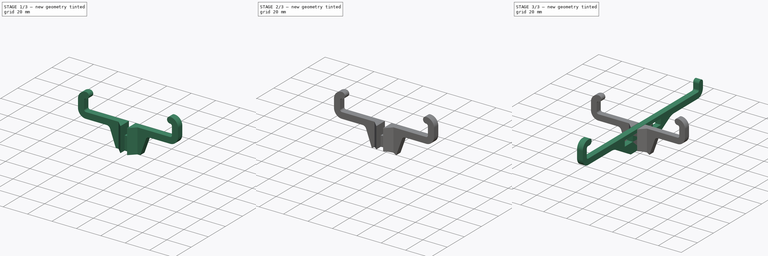
[diagram: build sequence overview — one tinted view per stage of 3, left to right]
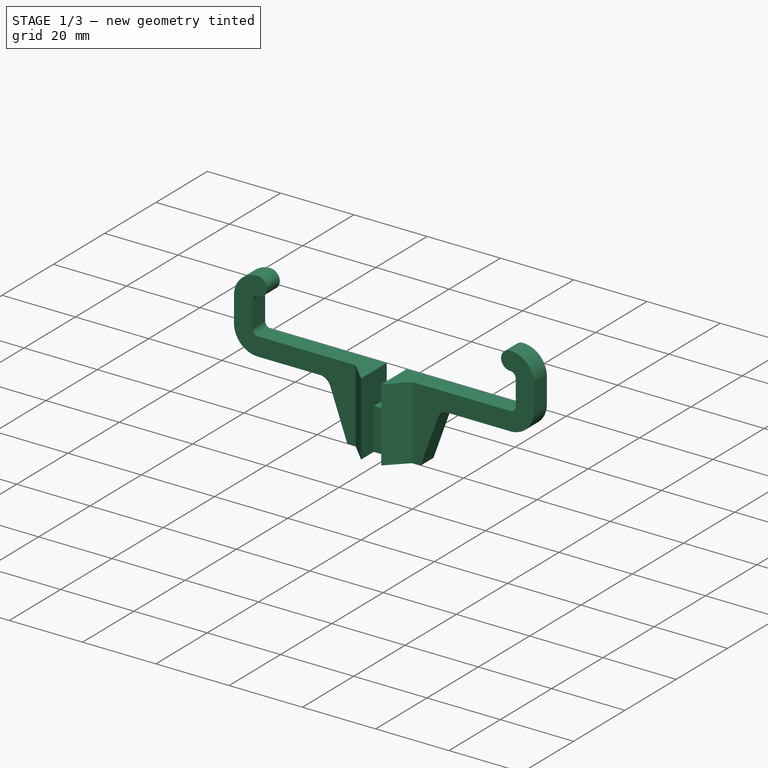
[diagram: stage 1 of 3 — iso view after this stage's code; geometry added in this stage tinted green]
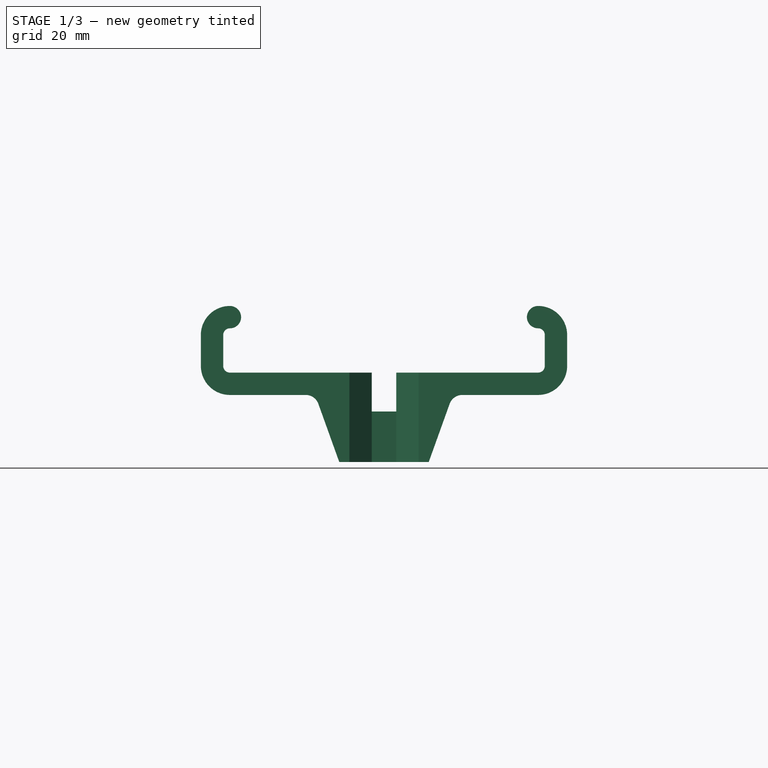
[diagram: stage 1 of 3 — front view after this stage's code; geometry added in this stage tinted green]
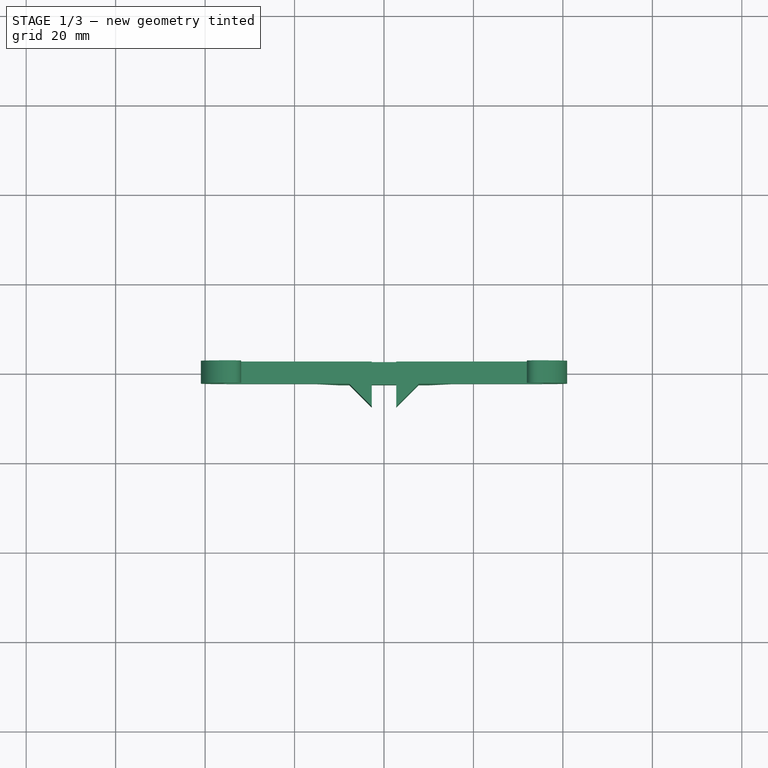
[diagram: stage 1 of 3 — top view after this stage's code; geometry added in this stage tinted green]
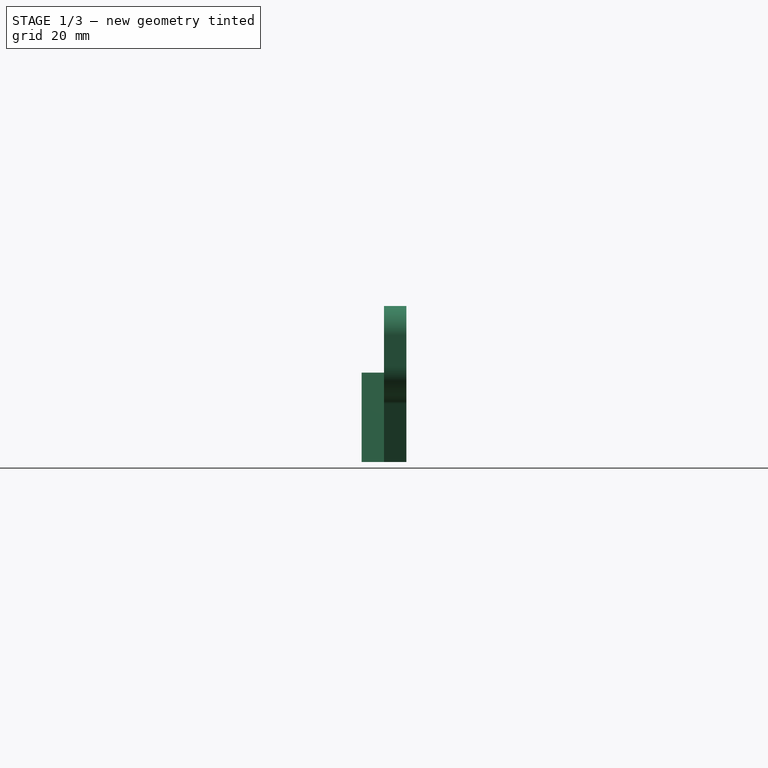
[diagram: stage 1 of 3 — right view after this stage's code; geometry added in this stage tinted green]
FCSTD DOCUMENT  (FreeCAD 0.14R2935 (Git))
Label: Phone Holder LG G2
License: CC-BY 3.0
LicenseURL: http://creativecommons.org/licenses/by/3.0/
objects: Sketcher::SketchObject×4, PartDesign::Pad×3, PartDesign::Pocket×1, Part::MultiFuse×1
note: 13 computed .brp shape members not serialized (recipe doc carries the construction recipe); baked Part::Feature solids carry a one-line shape summary decoded from their .brp

FEATURE [PartDesign::Pad] Pad001
  Length = 5
  Length2 = 100
  Midplane = true
  Placement = pos=(0,0,0) rot=(1,0,0;1.5708rad)
  Sketch = -> Sketch001
  Type = 0
FEATURE [Sketcher::SketchObject] Sketch002
  Placement = pos=(0,0,17) rot=(0,0,1;3.14159rad)
  Support = -> Pad001 [Face13]
  sketch-geometry (6):
    g0: LineSegment StartX=-7.75 StartY=2.5 StartZ=0 EndX=-2.75 EndY=7.5 EndZ=0
    g1: LineSegment StartX=-2.75 StartY=7.5 StartZ=0 EndX=-2.75 EndY=2.5 EndZ=0
    g2: LineSegment StartX=-2.75 StartY=2.5 StartZ=0 EndX=-7.75 EndY=2.5 EndZ=0
    g3: LineSegment StartX=2.75 StartY=7.5 StartZ=0 EndX=2.75 EndY=2.5 EndZ=0
    g4: LineSegment StartX=2.75 StartY=2.5 StartZ=0 EndX=7.75 EndY=2.5 EndZ=0
    g5: LineSegment StartX=7.75 StartY=2.5 StartZ=0 EndX=2.75 EndY=7.5 EndZ=0
  constraints (17):
    c: Coincident(g0,g1)
    c: Coincident(g1,g2)
    c: Coincident(g2,g0)
    c: Horizontal(g2)
    c: Vertical(g1)
    c: DistanceY(g1) = -5
    c: Vertical(g3)
    c: Coincident(g3,g4)
    c: Horizontal(g4)
    c: Coincident(g4,g5)
    c: Coincident(g5,g3)
    c: Equal(g1,g2)
    c: Equal(g2,g3)
    c: Equal(g3,g4)
    c: Symmetric(g3,g1,g-2)
    c: DistanceX(g3,g0) = -5.5
    c: DistanceY(g-1,g3) = 2.5
FEATURE [PartDesign::Pad] Pad002
  Length = 20
  Length2 = 100
  Placement = pos=(0,0,0) rot=(1,0,0;1.5708rad)
  Reversed = true
  Sketch = -> Sketch002
  Type = 0
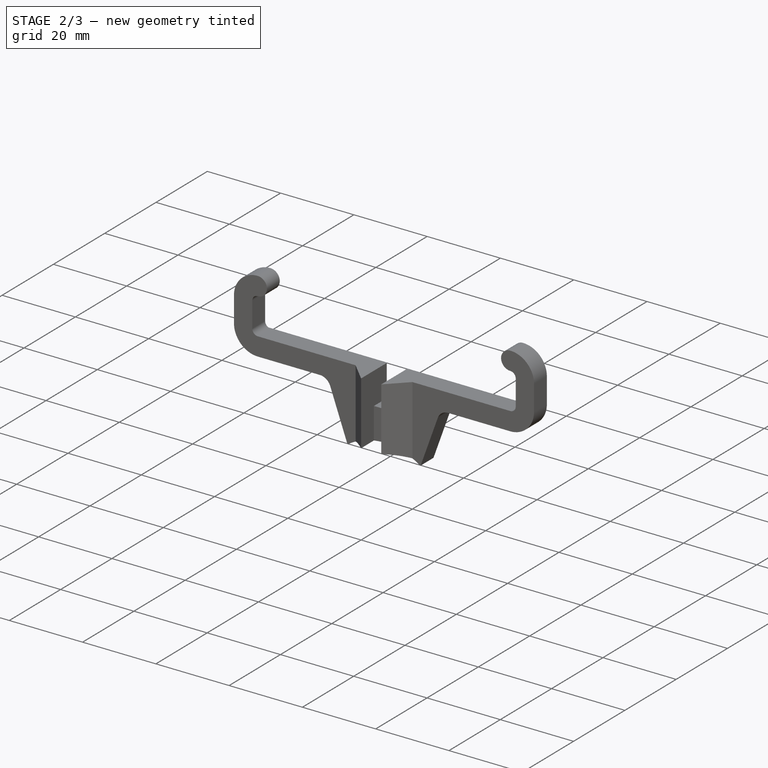
[diagram: stage 2 of 3 — iso view after this stage's code; geometry added in this stage tinted green]
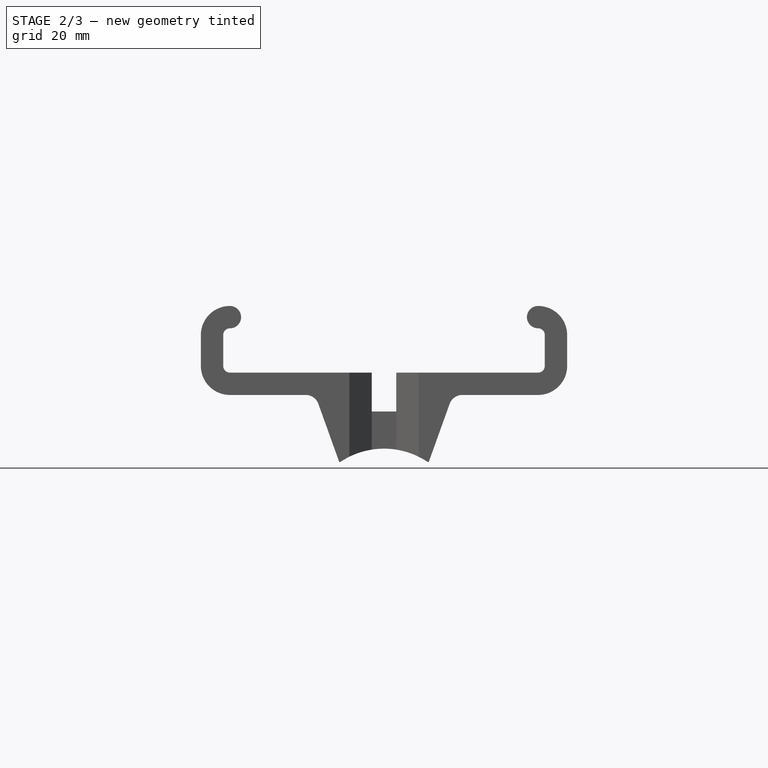
[diagram: stage 2 of 3 — front view after this stage's code; geometry added in this stage tinted green]
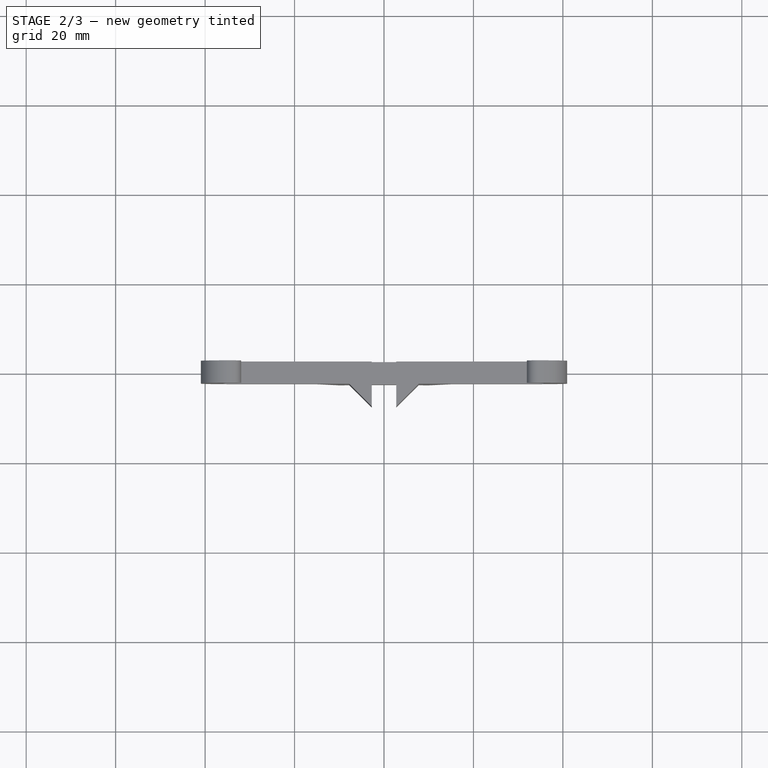
[diagram: stage 2 of 3 — top view after this stage's code; geometry added in this stage tinted green]
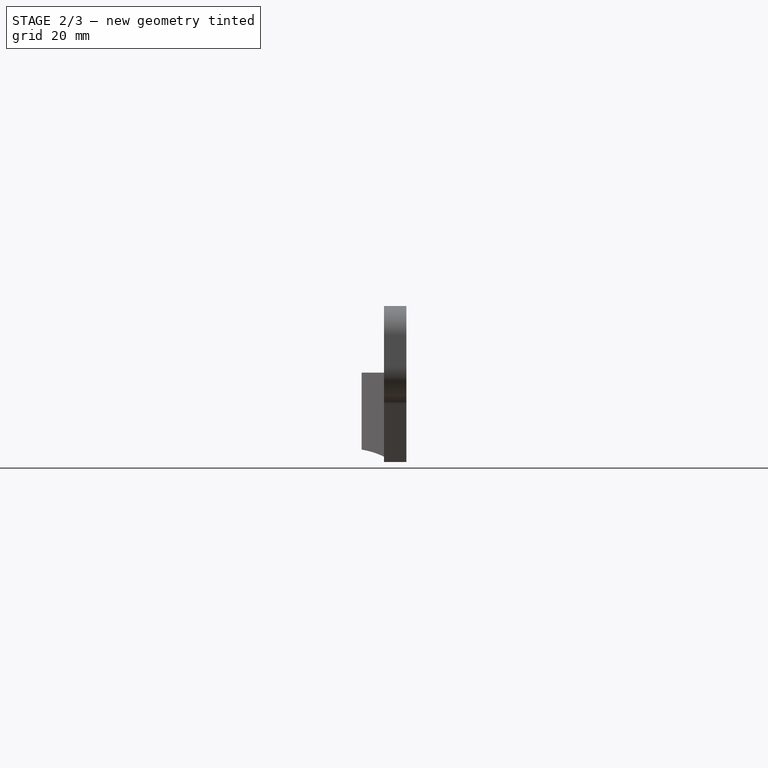
[diagram: stage 2 of 3 — right view after this stage's code; geometry added in this stage tinted green]
FEATURE [Sketcher::SketchObject] Sketch003
  Placement = pos=(0,2.5,0) rot=(-1,0,0;1.5708rad)
  Support = -> Pad002 [Face4]
  sketch-geometry (2):
    g0: ArcOfCircle CenterX=0 CenterY=17.5 CenterZ=0 NormalX=0 NormalY=0 NormalZ=1 Radius=17.5 StartAngle=4.10414 EndAngle=5.32063
    g1: LineSegment StartX=-10 StartY=3.13859 StartZ=0 EndX=10 EndY=3.13859 EndZ=0
  constraints (7):
    c: PointOnObject(g0,g-2)
    c: Symmetric(g0,g0,g-2)
    c: Radius(g0) = 17.5
    c: PointOnObject(g-1,g0)
    c: Coincident(g1,g0)
    c: Coincident(g1,g0)
    c: DistanceX(g1) = 20
FEATURE [PartDesign::Pocket] Pocket  label="Horizontal"
  Length = 10
  Placement = pos=(0,0,0) rot=(1,0,0;1.5708rad)
  Sketch = -> Sketch003
  Type = 0
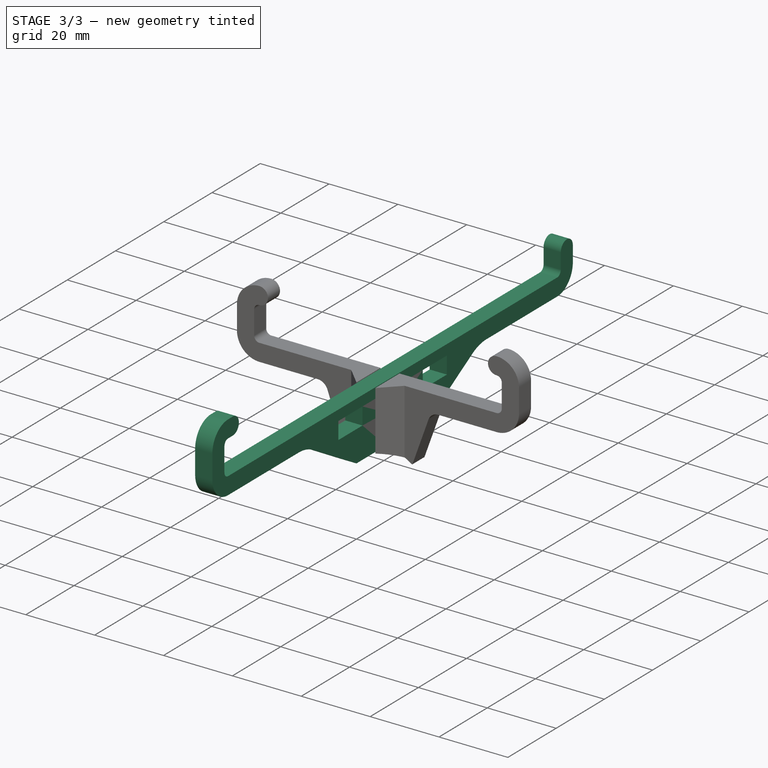
[diagram: stage 3 of 3 — iso view after this stage's code; geometry added in this stage tinted green]
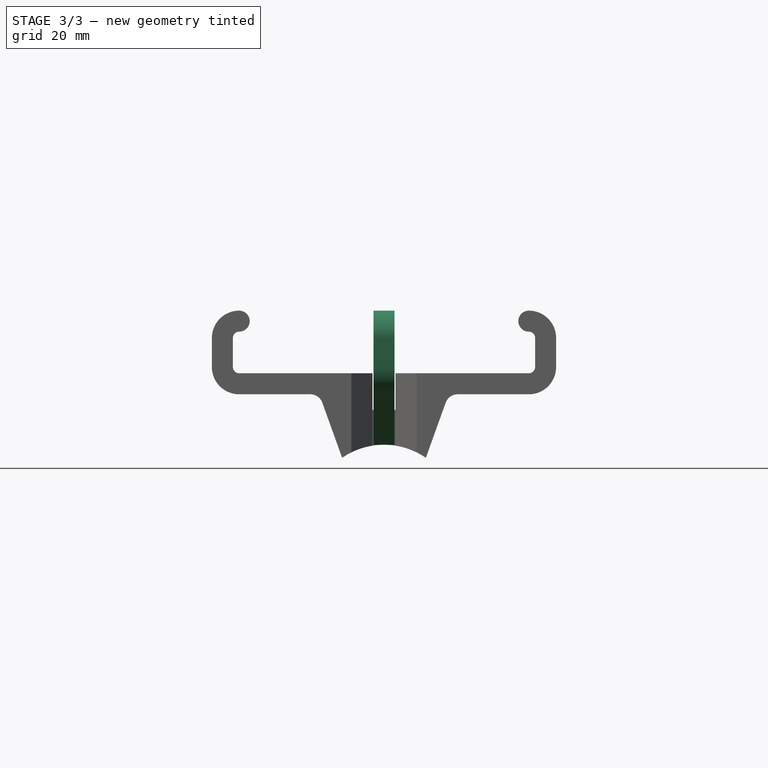
[diagram: stage 3 of 3 — front view after this stage's code; geometry added in this stage tinted green]
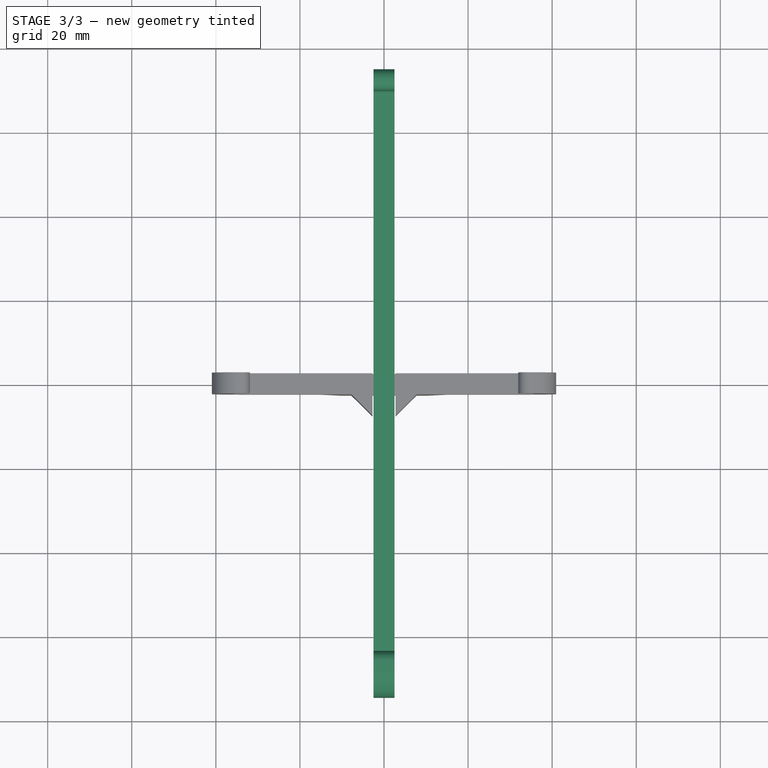
[diagram: stage 3 of 3 — top view after this stage's code; geometry added in this stage tinted green]
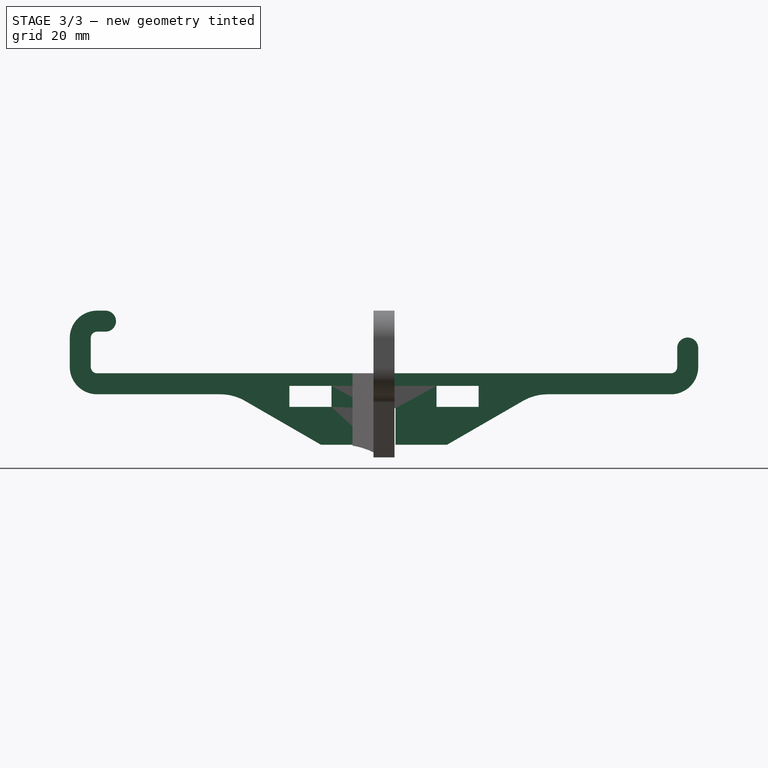
[diagram: stage 3 of 3 — right view after this stage's code; geometry added in this stage tinted green]
FEATURE [Sketcher::SketchObject] Sketch  label="Vertical Piece"
  Placement = pos=(0,0,0) rot=(0.57735,0.57735,0.57735;2.0944rad)
  sketch-geometry (34):
    g0: LineSegment StartX=74.75 StartY=18.5 StartZ=0 EndX=74.75 EndY=23 EndZ=0
    g1: LineSegment StartX=-68.25 StartY=26.9 StartZ=0 EndX=-66.25 EndY=26.9 EndZ=0
    g2: ArcOfCircle CenterX=-66.25 CenterY=29.4 CenterZ=0 NormalX=0 NormalY=0 NormalZ=1 Radius=2.5 StartAngle=4.71239 EndAngle=7.85398
    g3: LineSegment StartX=-69.75 StartY=25.4 StartZ=0 EndX=-69.75 EndY=18.5 EndZ=0
    g4: ArcOfCircle CenterX=-68.25 CenterY=25.4 CenterZ=0 NormalX=0 NormalY=0 NormalZ=1 Radius=1.5 StartAngle=1.5708 EndAngle=3.1416
    g5: ArcOfCircle CenterX=-68.25 CenterY=18.5 CenterZ=0 NormalX=0 NormalY=0 NormalZ=1 Radius=1.5 StartAngle=3.14159 EndAngle=4.71239
    g6: LineSegment StartX=69.75 StartY=18.5 StartZ=0 EndX=69.75 EndY=23 EndZ=0
    g7: ArcOfCircle CenterX=72.25 CenterY=23 CenterZ=0 NormalX=0 NormalY=0 NormalZ=1 Radius=2.5 StartAngle=6.28319 EndAngle=9.42478
    g8: ArcOfCircle CenterX=-68.25 CenterY=18.5 CenterZ=0 NormalX=0 NormalY=0 NormalZ=1 Radius=6.5 StartAngle=3.14159 EndAngle=4.71239
    g9: LineSegment StartX=38.9608 StartY=12 StartZ=0 EndX=68.25 EndY=12 EndZ=0
    g10: ArcOfCircle CenterX=68.25 CenterY=18.5 CenterZ=0 NormalX=0 NormalY=0 NormalZ=1 Radius=6.5 StartAngle=4.71239 EndAngle=6.28319
    g11: LineSegment StartX=15 StartY=0 StartZ=0 EndX=33 EndY=10.3923 EndZ=0
    g12: ArcOfCircle CenterX=38.9608 CenterY=0.145947 CenterZ=0 NormalX=0 NormalY=0 NormalZ=1 Radius=11.8541 StartAngle=1.5708 EndAngle=2.09769
    g13: LineSegment StartX=-68.25 StartY=12 StartZ=0 EndX=-38.9608 EndY=12 EndZ=0
    g14: LineSegment StartX=-15 StartY=0 StartZ=0 EndX=-33 EndY=10.3923 EndZ=0
    g15: ArcOfCircle CenterX=-38.9608 CenterY=0.145947 CenterZ=0 NormalX=0 NormalY=0 NormalZ=1 Radius=11.8541 StartAngle=1.04391 EndAngle=1.5708
    g16: LineSegment StartX=-66.25 StartY=31.9 StartZ=0 EndX=-68.25 EndY=31.9 EndZ=0
    g17: LineSegment StartX=-74.75 StartY=18.5 StartZ=0 EndX=-74.75 EndY=25.4 EndZ=0
    g18: ArcOfCircle CenterX=-68.25 CenterY=25.4 CenterZ=0 NormalX=0 NormalY=0 NormalZ=1 Radius=6.5 StartAngle=1.5708 EndAngle=3.14159
    g19: ArcOfCircle CenterX=68.25 CenterY=18.5 CenterZ=0 NormalX=0 NormalY=0 NormalZ=1 Radius=1.5 StartAngle=4.71239 EndAngle=6.28319
    g20: LineSegment StartX=-68.25 StartY=17 StartZ=0 EndX=68.25 EndY=17 EndZ=0
    g21: LineSegment StartX=-15 StartY=0 StartZ=0 EndX=-2.75 EndY=0 EndZ=0
    g22: LineSegment StartX=-2.75 StartY=0 StartZ=0 EndX=-2.75 EndY=8.7 EndZ=0
    g23: LineSegment StartX=-2.75 StartY=8.7 StartZ=0 EndX=2.75 EndY=8.7 EndZ=0
    g24: LineSegment StartX=2.75 StartY=8.7 StartZ=0 EndX=2.75 EndY=0 EndZ=0
    g25: LineSegment StartX=2.75 StartY=0 StartZ=0 EndX=15 EndY=0 EndZ=0
    g26: LineSegment StartX=-22.5 StartY=14 StartZ=0 EndX=-12.5 EndY=14 EndZ=0
    g27: LineSegment StartX=-12.5 StartY=14 StartZ=0 EndX=-12.5 EndY=9 EndZ=0
    g28: LineSegment StartX=-12.5 StartY=9 StartZ=0 EndX=-22.5 EndY=9 EndZ=0
    g29: LineSegment StartX=-22.5 StartY=9 StartZ=0 EndX=-22.5 EndY=14 EndZ=0
    g30: LineSegment StartX=12.5 StartY=14 StartZ=0 EndX=22.5 EndY=14 EndZ=0
    g31: LineSegment StartX=22.5 StartY=14 StartZ=0 EndX=22.5 EndY=9 EndZ=0
    g32: LineSegment StartX=22.5 StartY=9 StartZ=0 EndX=12.5 EndY=9 EndZ=0
    g33: LineSegment StartX=12.5 StartY=9 StartZ=0 EndX=12.5 EndY=14 EndZ=0
  constraints (106):
    c: Coincident(g2,g1)
    c: Coincident(g4,g1)
    c: Coincident(g4,g3)
    c: Coincident(g5,g3)
    c: Coincident(g7,g6)
    c: Coincident(g7,g0)
    c: Coincident(g10,g0)
    c: Coincident(g10,g9)
    c: DistanceX(g6,g3) = -139.5
    c: Coincident(g12,g9)
    c: Coincident(g12,g11)
    c: Coincident(g13,g8)
    c: Coincident(g15,g13)
    c: Coincident(g15,g14)
    c: Horizontal(g9)
    c: Horizontal(g13)
    c: Horizontal(g1)
    c: Vertical(g3)
    c: Vertical(g6)
    c: Vertical(g0)
    c: Symmetric(g11,g14,g-2)
    c: Angle(g11,g-1) = 2.61799
    c: Angle(g-1,g14) = 2.61799
    c: DistanceX(g11) = 18
    c: PointOnObject(g14,g-1)
    c: DistanceY(g1,g5) = -9.9
    c: Symmetric(g3,g6,g-2)
    c: DistanceY(g6,g19) = -6
    c: DistanceX(g1) = 2
    c: DistanceY(g2,g1) = -5
    c: DistanceX(g6,g0) = 5
    c: DistanceX(g8,g3) = 5
    c: Tangent(g7,g6)
    c: Tangent(g7,g0)
    c: Tangent(g2,g1)
    c: Radius(g5) = 1.5
    c: Tangent(g5,g3)
    c: Equal(g4,g5)
    c: Tangent(g4,g3)
    c: Tangent(g4,g1)
    c: Coincident(g16,g2)
    c: Horizontal(g16)
    c: Coincident(g17,g8)
    c: Vertical(g17)
    c: Tangent(g17,g8)
    c: Coincident(g18,g16)
    c: Coincident(g18,g17)
    c: Tangent(g18,g16)
    c: Tangent(g18,g17)
    c: Radius(g18) = 6.5
    c: Tangent(g2,g16)
    c: Tangent(g8,g13)
    c: Radius(g8) = 6.5
    c: Coincident(g19,g6)
    c: Tangent(g19,g6)
    c: Tangent(g10,g0)
    c: Tangent(g10,g9)
    c: Radius(g10) = 6.5
    c: DistanceY(g-1,g19) = 17
    c: Coincident(g20,g5)
    c: Coincident(g20,g19)
    c: Horizontal(g20)
    c: Tangent(g5,g20)
    c: Tangent(g19,g20)
    c: Coincident(g14,g21)
    c: Horizontal(g21)
    c: Coincident(g21,g22)
    c: Vertical(g22)
    c: Coincident(g22,g23)
    c: Coincident(g23,g24)
    c: PointOnObject(g24,g-1)
    c: Vertical(g24)
    c: Coincident(g24,g25)
    c: Coincident(g25,g11)
    c: Symmetric(g23,g22,g-2)
    c: DistanceX(g23) = 5.5
    c: DistanceY(g24) = -8.7
    c: DistanceX(g14,g11) = 30
    c: Symmetric(g9,g13,g-2)
    c: Coincident(g8,g5)
    c: Coincident(g26,g27)
    c: Coincident(g27,g28)
    c: Coincident(g28,g29)
    c: Coincident(g29,g26)
    c: Horizontal(g26)
    c: Horizontal(g28)
    c: Vertical(g27)
    c: Vertical(g29)
    c: Coincident(g30,g31)
    c: Coincident(g31,g32)
    c: Coincident(g32,g33)
    c: Coincident(g33,g30)
    c: Horizontal(g30)
    c: Horizontal(g32)
    c: Vertical(g31)
    c: Vertical(g33)
    c: Equal(g26,g30)
    c: Equal(g27,g33)
    c: Symmetric(g26,g30,g-2)
    c: DistanceX(g26,g30) = 25
    c: DistanceX(g26) = 10
    c: DistanceY(g31) = -5
    c: DistanceY(g32,g24) = -9
    c: Symmetric(g11,g14,g-2)
    c: Symmetric(g15,g12,g-2)
    c: Tangent(g13,g15)
FEATURE [Sketcher::SketchObject] Sketch001  label="Horizotal Piece"
  Placement = pos=(0,0,0) rot=(1,0,0;1.5708rad)
  sketch-geometry (26):
    g0: LineSegment StartX=17.5 StartY=12 StartZ=0 EndX=34.45 EndY=12 EndZ=0
    g1: LineSegment StartX=-34.45 StartY=12 StartZ=0 EndX=-17.5 EndY=12 EndZ=0
    g2: ArcOfCircle CenterX=-34.45 CenterY=18.5 CenterZ=0 NormalX=0 NormalY=0 NormalZ=1 Radius=1.5 StartAngle=3.14158 EndAngle=4.71239
    g3: LineSegment StartX=-35.95 StartY=18.5 StartZ=0 EndX=-35.95 EndY=25.4 EndZ=0
    g4: ArcOfCircle CenterX=-34.45 CenterY=25.4 CenterZ=0 NormalX=0 NormalY=0 NormalZ=1 Radius=1.5 StartAngle=1.5708 EndAngle=3.1416
    g5: ArcOfCircle CenterX=-34.45 CenterY=29.4 CenterZ=0 NormalX=0 NormalY=0 NormalZ=1 Radius=2.5 StartAngle=4.71239 EndAngle=7.85398
    g6: ArcOfCircle CenterX=-34.45 CenterY=25.4 CenterZ=0 NormalX=0 NormalY=0 NormalZ=1 Radius=6.5 StartAngle=1.5708 EndAngle=3.14159
    g7: LineSegment StartX=-40.95 StartY=25.4 StartZ=0 EndX=-40.95 EndY=18.5 EndZ=0
    g8: ArcOfCircle CenterX=-34.45 CenterY=18.5 CenterZ=0 NormalX=0 NormalY=0 NormalZ=1 Radius=6.5 StartAngle=3.14159 EndAngle=4.71239
    g9: ArcOfCircle CenterX=34.45 CenterY=18.5 CenterZ=0 NormalX=0 NormalY=0 NormalZ=1 Radius=1.5 StartAngle=4.71239 EndAngle=6.28319
    g10: LineSegment StartX=35.95 StartY=18.5 StartZ=0 EndX=35.95 EndY=25.4 EndZ=0
    g11: ArcOfCircle CenterX=34.45 CenterY=25.4 CenterZ=0 NormalX=0 NormalY=0 NormalZ=1 Radius=1.5 StartAngle=2.7713e-08 EndAngle=1.5708
    g12: ArcOfCircle CenterX=34.45 CenterY=29.4 CenterZ=0 NormalX=0 NormalY=0 NormalZ=1 Radius=2.5 StartAngle=1.5708 EndAngle=4.71239
    g13: LineSegment StartX=40.95 StartY=25.4 StartZ=0 EndX=40.95 EndY=18.5 EndZ=0
    g14: ArcOfCircle CenterX=34.45 CenterY=18.5 CenterZ=0 NormalX=0 NormalY=0 NormalZ=1 Radius=6.5 StartAngle=4.71239 EndAngle=6.28319
    g15: LineSegment StartX=-34.45 StartY=17 StartZ=0 EndX=-2.75 EndY=17 EndZ=0
    g16: LineSegment StartX=-2.75 StartY=17 StartZ=0 EndX=-2.75 EndY=8.3 EndZ=0
    g17: LineSegment StartX=2.75 StartY=8.3 StartZ=0 EndX=2.75 EndY=17 EndZ=0
    g18: LineSegment StartX=2.75 StartY=17 StartZ=0 EndX=34.45 EndY=17 EndZ=0
    g19: LineSegment StartX=-2.75 StartY=8.3 StartZ=0 EndX=2.75 EndY=8.3 EndZ=0
    g20: ArcOfCircle CenterX=34.45 CenterY=25.4 CenterZ=0 NormalX=0 NormalY=0 NormalZ=1 Radius=6.5 StartAngle=6.28319 EndAngle=7.85398
    g21: LineSegment StartX=-10 StartY=-3 StartZ=0 EndX=10 EndY=-3 EndZ=0
    g22: LineSegment StartX=-14.6768 StartY=10.0145 StartZ=0 EndX=-10 EndY=-3 EndZ=0
    g23: LineSegment StartX=10 StartY=-3 StartZ=0 EndX=14.6768 EndY=10.0145 EndZ=0
    g24: ArcOfCircle CenterX=-17.5 CenterY=8.99999 CenterZ=0 NormalX=0 NormalY=0 NormalZ=1 Radius=3 StartAngle=0.344979 EndAngle=1.5708
    g25: ArcOfCircle CenterX=17.5 CenterY=8.99999 CenterZ=0 NormalX=0 NormalY=0 NormalZ=1 Radius=3 StartAngle=1.5708 EndAngle=2.79661
  constraints (81):
    c: Symmetric(g0,g1,g-2)
    c: Coincident(g3,g2)
    c: Vertical(g3)
    c: Coincident(g4,g3)
    c: Coincident(g5,g4)
    c: DistanceY(g5,g4) = -5
    c: Coincident(g7,g6)
    c: Vertical(g7)
    c: Tangent(g7,g6)
    c: Coincident(g8,g2)
    c: Coincident(g8,g7)
    c: Coincident(g8,g1)
    c: Coincident(g10,g9)
    c: Vertical(g10)
    c: Coincident(g11,g10)
    c: Coincident(g12,g11)
    c: Vertical(g13)
    c: Coincident(g14,g9)
    c: Coincident(g14,g13)
    c: Coincident(g14,g0)
    c: DistanceY(g11,g12) = 5
    c: Symmetric(g3,g10,g-2)
    c: DistanceX(g3,g10) = 71.9
    c: DistanceY(g4,g2) = -9.9
    c: Equal(g4,g2)
    c: Equal(g2,g11)
    c: Equal(g11,g9)
    c: Radius(g2) = 1.5
    c: Coincident(g4,g6)
    c: Tangent(g3,g2)
    c: Tangent(g4,g3)
    c: Radius(g5) = 2.5
    c: Tangent(g4,g5)
    c: Coincident(g6,g5)
    c: Tangent(g6,g5)
    c: Tangent(g7,g8)
    c: Tangent(g8,g1)
    c: Radius(g12) = 2.5
    c: Tangent(g9,g10)
    c: Tangent(g11,g10)
    c: Tangent(g14,g13)
    c: Tangent(g14,g0)
    c: Tangent(g2,g15)
    c: Coincident(g15,g16)
    c: Vertical(g16)
    c: Vertical(g17)
    c: Coincident(g17,g18)
    c: Coincident(g18,g9)
    c: Horizontal(g18)
    c: Symmetric(g17,g16,g-2)
    c: DistanceY(g17) = 8.7
    c: Tangent(g9,g18)
    c: Horizontal(g15)
    c: Coincident(g19,g16)
    c: Coincident(g19,g17)
    c: DistanceX(g19) = 5.5
    c: Coincident(g20,g11)
    c: Coincident(g20,g12)
    c: Coincident(g13,g20)
    c: Tangent(g20,g13)
    c: Tangent(g20,g12)
    c: Tangent(g11,g12)
    c: Symmetric(g21,g21,g-2)
    c: DistanceY(g-1,g9) = 17
    c: Horizontal(g1)
    c: DistanceX(g21,g21) = -20
    c: DistanceX(g1,g0) = 35
    c: DistanceY(g-1,g21) = -3
    c: Coincident(g22,g21)
    c: Coincident(g23,g21)
    c: Coincident(g24,g1)
    c: Coincident(g24,g22)
    c: Coincident(g25,g0)
    c: Coincident(g25,g23)
    c: Tangent(g24,g1)
    c: Tangent(g24,g22)
    c: Tangent(g25,g0)
    c: Tangent(g25,g23)
    c: Equal(g25,g24)
    c: Radius(g24) = 3
    c: Equal(g10,g3)
FEATURE [PartDesign::Pad] Pad  label="Vertical"
  Length = 5
  Length2 = 100
  Midplane = true
  Placement = pos=(0,0,0) rot=(0.57735,0.57735,0.57735;2.0944rad)
  Sketch = -> Sketch
  Type = 0
FEATURE [Part::MultiFuse] Fusion
  Shapes = -> [Pocket,Pad]
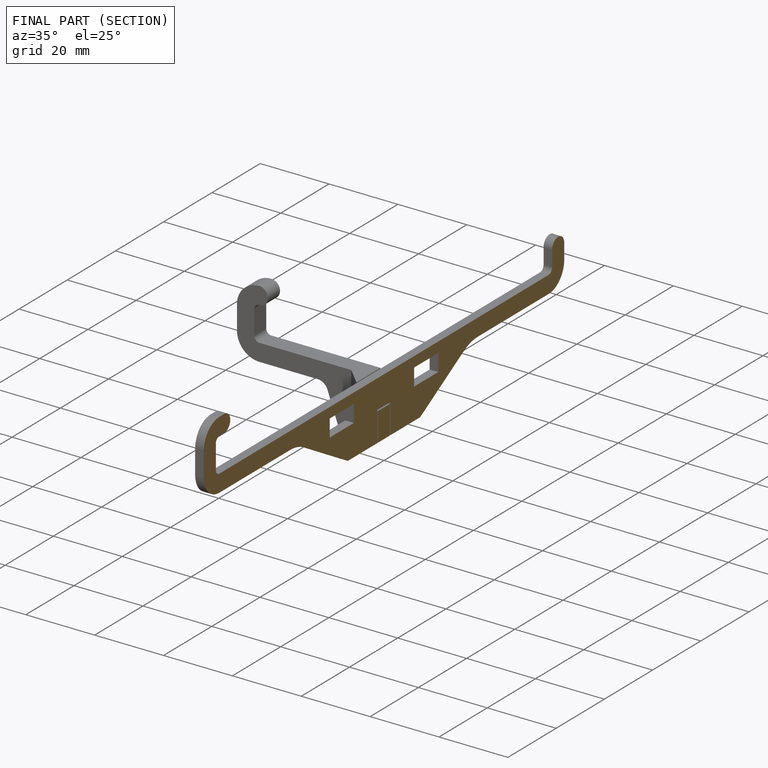
[diagram: finished part — half-section view (interior)]
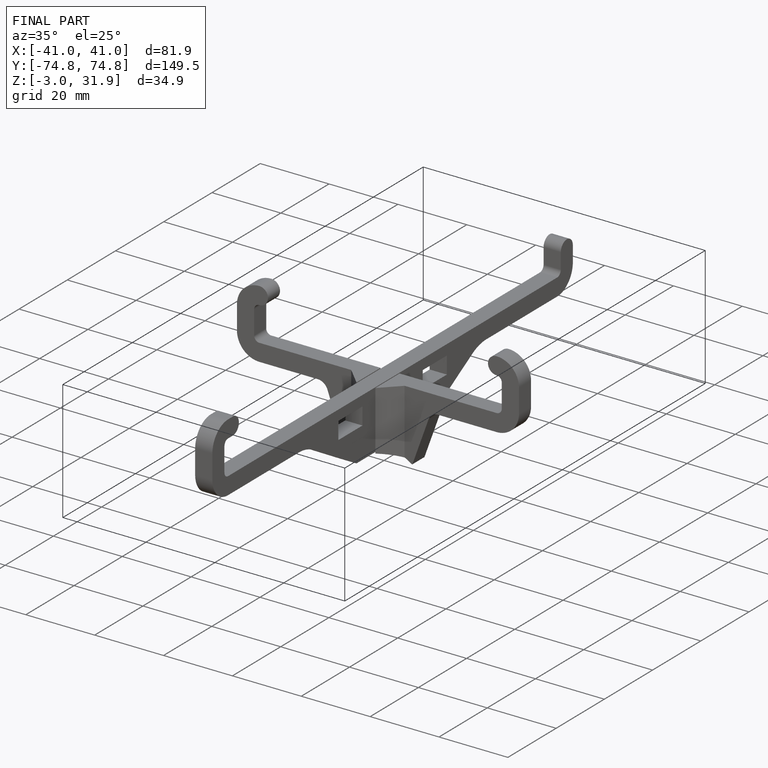
[diagram: finished part — iso view with bounding-box wireframe]
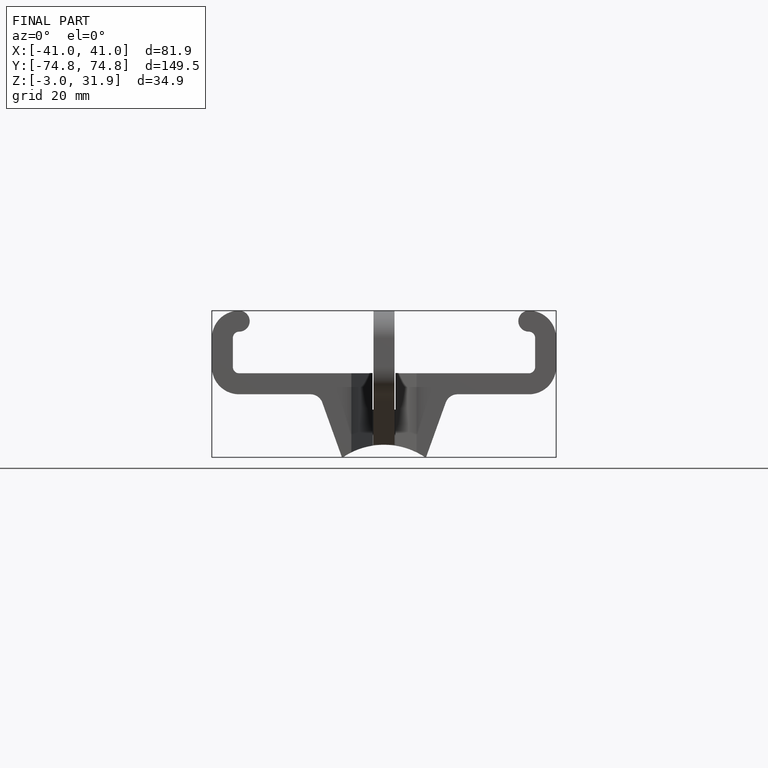
[diagram: finished part — front view with bounding-box wireframe]
